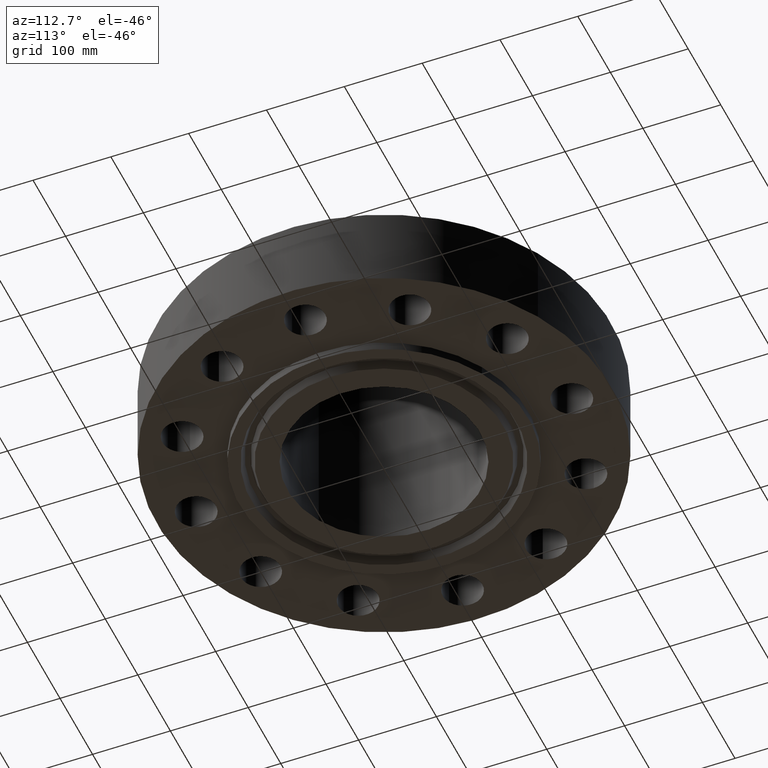
[diagram: clean part render]
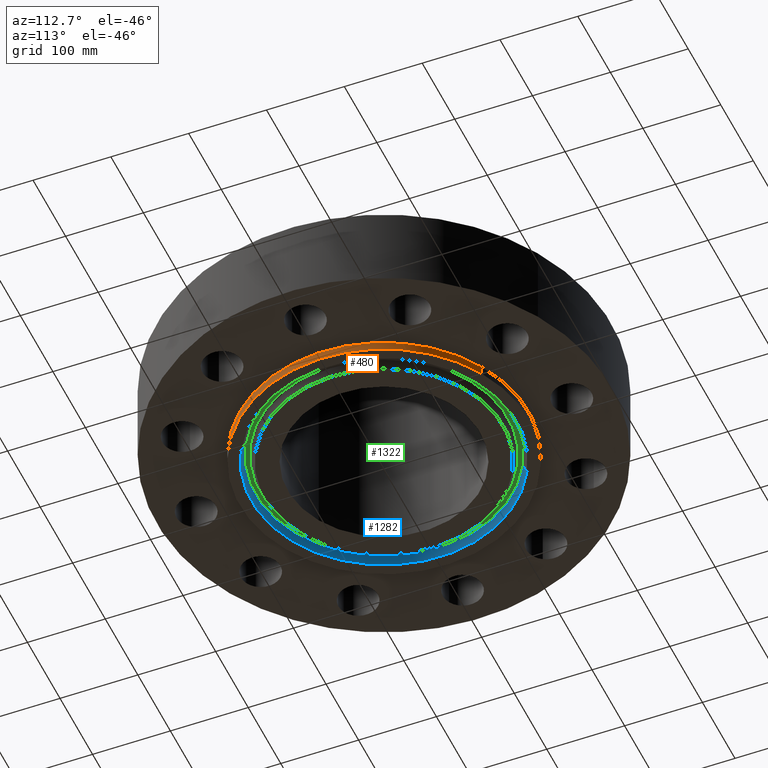
[diagram: same view with three faces highlighted in distinct colors, each labeled with its STEP entity id]
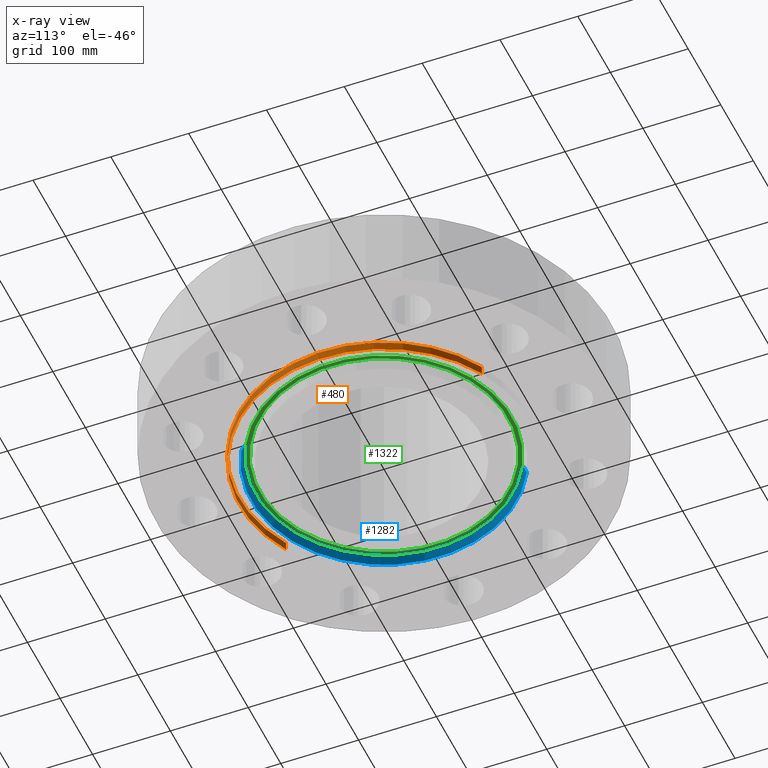
[diagram: x-ray of the same camera — body ghosted, the three highlighted faces saturated]
A machine part, auxiliary view with three faces highlighted in distinct colors.
The next image is the same camera in x-ray (body ghosted, the three faces saturated) — at least one of them is partly hidden behind the body in this view.
Their STEP definitions:

[orange] entity #480 — the highlighted cylindrical surface (partial cylindrical patch) has radius 185.738 mm, axis along (0, 0, -1).
#427=AXIS2_PLACEMENT_3D('Cylinder Axis2P3D',#424,#425,#426) ;
#466=AXIS2_PLACEMENT_3D('Circle Axis2P3D',#464,#465,$) ;
#471=AXIS2_PLACEMENT_3D('Circle Axis2P3D',#469,#470,$) ;
#424=CARTESIAN_POINT('Axis2P3D Location',(0.,0.,4.78100000002)) ;
#433=CARTESIAN_POINT('Vertex',(-3.50579925106,-6.41732248385,-0.438000000002)) ;
#435=CARTESIAN_POINT('Vertex',(3.50579925106,6.41732248385,-0.438000000002)) ;
#438=CARTESIAN_POINT('Line Origine',(-3.50579925106,-6.41732248385,-0.219000000001)) ;
#442=CARTESIAN_POINT('Vertex',(-3.50579925106,-6.41732248385,5.59482469102E-016)) ;
#449=CARTESIAN_POINT('Vertex',(3.50579925106,6.41732248385,5.59482469102E-016)) ;
#452=CARTESIAN_POINT('Line Origine',(3.50579925106,6.41732248385,-0.219000000001)) ;
#464=CARTESIAN_POINT('Axis2P3D Location',(0.,0.,-0.438000000002)) ;
#469=CARTESIAN_POINT('Axis2P3D Location',(0.,0.,5.59482469102E-016)) ;
#425=DIRECTION('Axis2P3D Direction',(0.,0.,-0.0393700787402)) ;
#426=DIRECTION('Axis2P3D XDirection',(0.0188750212049,0.0345504945626,0.)) ;
#439=DIRECTION('Vector Direction',(0.,0.,-0.0393700787402)) ;
#453=DIRECTION('Vector Direction',(0.,0.,-0.0393700787402)) ;
#465=DIRECTION('Axis2P3D Direction',(0.,0.,-0.0393700787402)) ;
#470=DIRECTION('Axis2P3D Direction',(0.,0.,-0.0393700787402)) ;
#440=VECTOR('Line Direction',#439,0.0393700787402) ;
#454=VECTOR('Line Direction',#453,0.0393700787402) ;
#475=ORIENTED_EDGE('',*,*,#468,.F.) ;
#476=ORIENTED_EDGE('',*,*,#456,.T.) ;
#477=ORIENTED_EDGE('',*,*,#473,.T.) ;
#478=ORIENTED_EDGE('',*,*,#444,.F.) ;
#480=ADVANCED_FACE('PartBody',(#479),#428,.T.) ;
#467=CIRCLE('generated circle',#466,7.31250000003) ;
#472=CIRCLE('generated circle',#471,7.31250000003) ;
#428=CYLINDRICAL_SURFACE('generated cylinder',#427,7.31250000003) ;
#444=EDGE_CURVE('',#434,#443,#441,.F.) ;
#456=EDGE_CURVE('',#436,#450,#455,.F.) ;
#468=EDGE_CURVE('',#436,#434,#467,.T.) ;
#473=EDGE_CURVE('',#450,#443,#472,.T.) ;
#474=EDGE_LOOP('',(#475,#476,#477,#478)) ;
#479=FACE_OUTER_BOUND('',#474,.T.) ;
#441=LINE('Line',#438,#440) ;
#455=LINE('Line',#452,#454) ;
#434=VERTEX_POINT('',#433) ;
#436=VERTEX_POINT('',#435) ;
#443=VERTEX_POINT('',#442) ;
#450=VERTEX_POINT('',#449) ;

[blue] entity #1282 — the highlighted conical surface has half-angle 23 deg.
#1181=AXIS2_PLACEMENT_3D('Circle Axis2P3D',#1179,#1180,$) ;
#1228=AXIS2_PLACEMENT_3D('Circle Axis2P3D',#1226,#1227,$) ;
#1264=AXIS2_PLACEMENT_3D('Cone Axis2P3D',#1261,#1262,#1263) ;
#1179=CARTESIAN_POINT('Axis2P3D Location',(8.39223703654E-016,0.,-0.438000000002)) ;
#1183=CARTESIAN_POINT('Vertex',(3.21358938528,-5.88243591237,-0.438000000002)) ;
#1185=CARTESIAN_POINT('Vertex',(-3.21358938528,5.88243591237,-0.438000000002)) ;
#1226=CARTESIAN_POINT('Axis2P3D Location',(0.,0.,-0.0383839389053)) ;
#1230=CARTESIAN_POINT('Vertex',(-3.13226589145,5.73357425544,-0.0383839389053)) ;
#1232=CARTESIAN_POINT('Vertex',(3.13226589145,-5.73357425544,-0.0383839389053)) ;
#1261=CARTESIAN_POINT('Axis2P3D Location',(0.,0.,-0.0383839389053)) ;
#1266=CARTESIAN_POINT('Line Origine',(-3.17292763836,5.80800508391,-0.238191969454)) ;
#1271=CARTESIAN_POINT('Line Origine',(3.17292763836,-5.80800508391,-0.238191969454)) ;
#1180=DIRECTION('Axis2P3D Direction',(0.,0.,-0.0393700787402)) ;
#1227=DIRECTION('Axis2P3D Direction',(0.,0.,0.0393700787402)) ;
#1262=DIRECTION('Axis2P3D Direction',(-0.,-0.,-0.0393700787402)) ;
#1263=DIRECTION('Axis2P3D XDirection',(-0.0188750212049,0.0345504945626,0.)) ;
#1267=DIRECTION('Vector Direction',(-0.00737505833565,0.0134999537303,-0.0362403485611)) ;
#1272=DIRECTION('Vector Direction',(0.00737505833565,-0.0134999537303,-0.0362403485611)) ;
#1268=VECTOR('Line Direction',#1267,0.0393700787402) ;
#1273=VECTOR('Line Direction',#1272,0.0393700787402) ;
#1277=ORIENTED_EDGE('',*,*,#1187,.T.) ;
#1278=ORIENTED_EDGE('',*,*,#1270,.T.) ;
#1279=ORIENTED_EDGE('',*,*,#1234,.T.) ;
#1280=ORIENTED_EDGE('',*,*,#1275,.F.) ;
#1282=ADVANCED_FACE('PartBody',(#1281),#1265,.F.) ;
#1182=CIRCLE('generated circle',#1181,6.70300000003) ;
#1229=CIRCLE('generated circle',#1228,6.53337304594) ;
#1265=CONICAL_SURFACE('Cone',#1264,6.53337304594,0.401425727959) ;
#1187=EDGE_CURVE('',#1184,#1186,#1182,.T.) ;
#1234=EDGE_CURVE('',#1231,#1233,#1229,.T.) ;
#1270=EDGE_CURVE('',#1186,#1231,#1269,.F.) ;
#1275=EDGE_CURVE('',#1184,#1233,#1274,.F.) ;
#1276=EDGE_LOOP('',(#1277,#1278,#1279,#1280)) ;
#1281=FACE_OUTER_BOUND('',#1276,.T.) ;
#1269=LINE('Line',#1266,#1268) ;
#1274=LINE('Line',#1271,#1273) ;
#1184=VERTEX_POINT('',#1183) ;
#1186=VERTEX_POINT('',#1185) ;
#1231=VERTEX_POINT('',#1230) ;
#1233=VERTEX_POINT('',#1232) ;

[green] entity #1322 — the highlighted planar face has unit normal (0, 0, -1).
#484=AXIS2_PLACEMENT_3D('Plane Axis2P3D',#481,#482,#483) ;
#1244=AXIS2_PLACEMENT_3D('Circle Axis2P3D',#1242,#1243,$) ;
#1290=AXIS2_PLACEMENT_3D('Circle Axis2P3D',#1288,#1289,$) ;
#1306=AXIS2_PLACEMENT_3D('Circle Axis2P3D',#1304,#1305,$) ;
#1315=AXIS2_PLACEMENT_3D('Circle Axis2P3D',#1313,#1314,$) ;
#481=CARTESIAN_POINT('Axis2P3D Location',(0.,7.31250000003,0.)) ;
#1239=CARTESIAN_POINT('Vertex',(-3.10446313874,5.68268165797,-7.86772222175E-017)) ;
#1242=CARTESIAN_POINT('Axis2P3D Location',(0.,0.,-7.86772222175E-017)) ;
#1246=CARTESIAN_POINT('Vertex',(3.10446313874,-5.68268165797,-7.86772222175E-017)) ;
#1288=CARTESIAN_POINT('Axis2P3D Location',(0.,0.,-7.86772222175E-017)) ;
#1304=CARTESIAN_POINT('Axis2P3D Location',(0.,0.,0.)) ;
#1308=CARTESIAN_POINT('Vertex',(3.00821247849,-5.50649600618,2.88483148131E-016)) ;
#1310=CARTESIAN_POINT('Vertex',(-3.00821247849,5.50649600618,2.88483148131E-016)) ;
#1313=CARTESIAN_POINT('Axis2P3D Location',(0.,0.,0.)) ;
#482=DIRECTION('Axis2P3D Direction',(0.,0.,-0.0393700787402)) ;
#483=DIRECTION('Axis2P3D XDirection',(0.0393700787402,0.,0.)) ;
#1243=DIRECTION('Axis2P3D Direction',(0.,0.,0.0393700787402)) ;
#1289=DIRECTION('Axis2P3D Direction',(0.,0.,0.0393700787402)) ;
#1305=DIRECTION('Axis2P3D Direction',(0.,0.,-0.0393700787402)) ;
#1314=DIRECTION('Axis2P3D Direction',(0.,0.,-0.0393700787402)) ;
#1301=ORIENTED_EDGE('',*,*,#1248,.F.) ;
#1302=ORIENTED_EDGE('',*,*,#1292,.F.) ;
#1319=ORIENTED_EDGE('',*,*,#1312,.T.) ;
#1320=ORIENTED_EDGE('',*,*,#1317,.T.) ;
#1321=FACE_BOUND('',#1318,.T.) ;
#1322=ADVANCED_FACE('PartBody',(#1303,#1321),#485,.T.) ;
#1245=CIRCLE('generated circle',#1244,6.47538124017) ;
#1291=CIRCLE('generated circle',#1290,6.47538124017) ;
#1307=CIRCLE('generated circle',#1306,6.27461875988) ;
#1316=CIRCLE('generated circle',#1315,6.27461875988) ;
#1248=EDGE_CURVE('',#1240,#1247,#1245,.T.) ;
#1292=EDGE_CURVE('',#1247,#1240,#1291,.T.) ;
#1312=EDGE_CURVE('',#1309,#1311,#1307,.F.) ;
#1317=EDGE_CURVE('',#1311,#1309,#1316,.F.) ;
#1300=EDGE_LOOP('',(#1301,#1302)) ;
#1318=EDGE_LOOP('',(#1319,#1320)) ;
#1303=FACE_OUTER_BOUND('',#1300,.T.) ;
#485=PLANE('',#484) ;
#1240=VERTEX_POINT('',#1239) ;
#1247=VERTEX_POINT('',#1246) ;
#1309=VERTEX_POINT('',#1308) ;
#1311=VERTEX_POINT('',#1310) ;